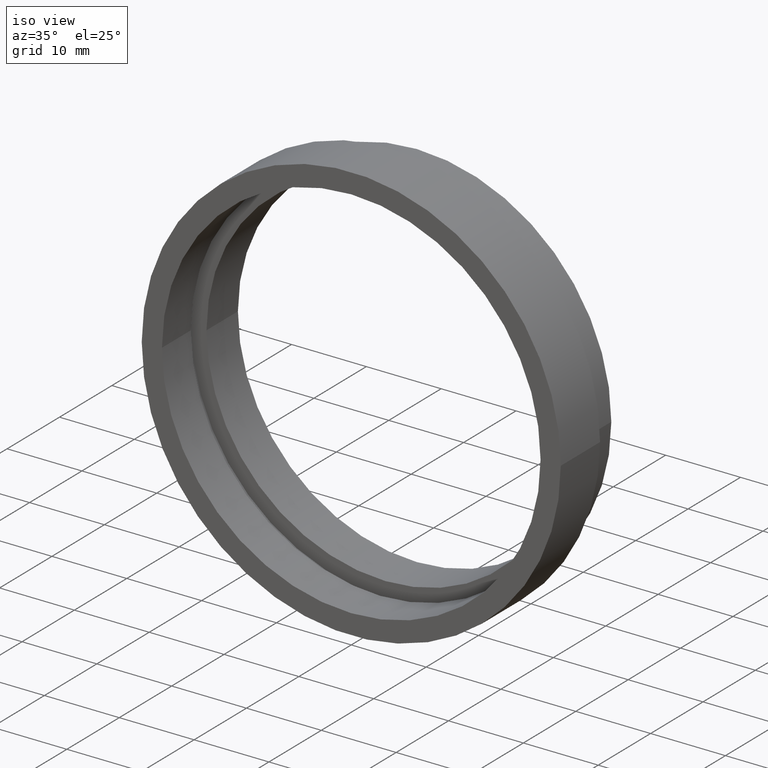
[diagram: clean part render]
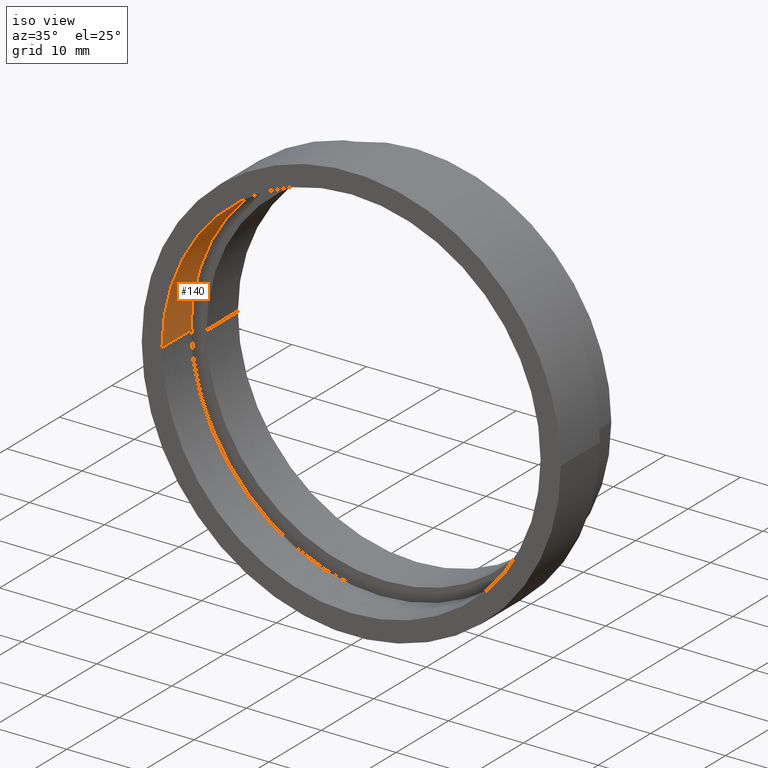
[diagram: same view with one face highlighted and labeled with its STEP entity id]
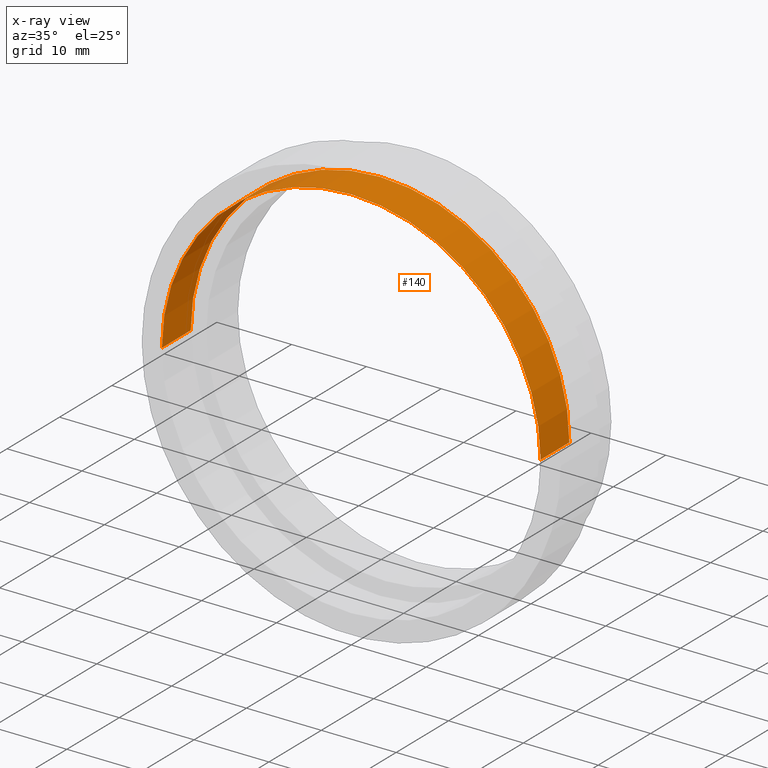
[diagram: x-ray of the same camera — body ghosted, the highlighted face saturated]
A machine part, iso view. The second image highlights one B-rep face of the part: STEP entity #140.
The next image is the same camera in x-ray: the body ghosted, the highlighted face saturated — about 0% of this face is hidden behind the body in this view.
In plain terms, the highlighted cylindrical surface (partial cylindrical patch) has radius 25.3 mm, axis along (-0, 1, -0).
Its self-contained STEP definition (entity closure, byte-faithful):
#2 = AXIS2_PLACEMENT_3D ( 'NONE', #334, #185, #242 ) ;
#44 = DIRECTION ( 'NONE',  ( -1.224646799147351000E-016, 1.000000000000000000, -0.0000000000000000000 ) ) ;
#51 = EDGE_LOOP ( 'NONE', ( #570, #492, #187, #537 ) ) ;
#58 = DIRECTION ( 'NONE',  ( -1.000000000000000000, -1.371322905910519200E-016, 0.0000000000000000000 ) ) ;
#102 = LINE ( 'NONE', #561, #142 ) ;
#108 = AXIS2_PLACEMENT_3D ( 'NONE', #169, #596, #558 ) ;
#125 = VECTOR ( 'NONE', #164, 1000.000000000000000 ) ;
#140 = ADVANCED_FACE ( 'NONE', ( #390 ), #486, .F. ) ;
#142 = VECTOR ( 'NONE', #44, 1000.000000000000000 ) ;
#149 = CARTESIAN_POINT ( 'NONE',  ( 25.30000000000000400, -3.710905501108162000E-016, 3.098356401842804300E-015 ) ) ;
#162 = CIRCLE ( 'NONE', #2, 25.30000000000000100 ) ;
#164 = DIRECTION ( 'NONE',  ( -1.224646799147351000E-016, 1.000000000000000000, -0.0000000000000000000 ) ) ;
#169 = CARTESIAN_POINT ( 'NONE',  ( 0.0000000000000000000, 16.88601823708207700, 0.0000000000000000000 ) ) ;
#170 = CARTESIAN_POINT ( 'NONE',  ( -25.29999999999999700, -6.567803353796412200E-015, 0.0000000000000000000 ) ) ;
#185 = DIRECTION ( 'NONE',  ( -1.224646799147351000E-016, 1.000000000000000000, -0.0000000000000000000 ) ) ;
#187 = ORIENTED_EDGE ( 'NONE', *, *, #502, .T. ) ;
#216 = CARTESIAN_POINT ( 'NONE',  ( 1.394385078907593400E-015, 5.499999999999994700, 0.0000000000000000000 ) ) ;
#227 = AXIS2_PLACEMENT_3D ( 'NONE', #216, #361, #58 ) ;
#242 = DIRECTION ( 'NONE',  ( -1.000000000000000000, -1.224646799147351000E-016, 0.0000000000000000000 ) ) ;
#261 = EDGE_CURVE ( 'NONE', #443, #597, #102, .T. ) ;
#278 = CARTESIAN_POINT ( 'NONE',  ( 25.30000000000000400, 5.499999999999998200, 3.098356401842804300E-015 ) ) ;
#302 = EDGE_CURVE ( 'NONE', #500, #443, #162, .T. ) ;
#334 = CARTESIAN_POINT ( 'NONE',  ( 2.067940818438636500E-015, -3.469446951953614200E-015, 0.0000000000000000000 ) ) ;
#339 = EDGE_CURVE ( 'NONE', #478, #597, #397, .T. ) ;
#361 = DIRECTION ( 'NONE',  ( -1.224646799147351000E-016, 1.000000000000000000, -0.0000000000000000000 ) ) ;
#374 = CARTESIAN_POINT ( 'NONE',  ( -25.30000000000000400, 5.499999999999991100, 0.0000000000000000000 ) ) ;
#390 = FACE_OUTER_BOUND ( 'NONE', #51, .T. ) ;
#397 = CIRCLE ( 'NONE', #227, 25.30000000000000400 ) ;
#443 = VERTEX_POINT ( 'NONE', #149 ) ;
#478 = VERTEX_POINT ( 'NONE', #374 ) ;
#486 = CYLINDRICAL_SURFACE ( 'NONE', #108, 25.30000000000000400 ) ;
#492 = ORIENTED_EDGE ( 'NONE', *, *, #302, .F. ) ;
#500 = VERTEX_POINT ( 'NONE', #170 ) ;
#502 = EDGE_CURVE ( 'NONE', #500, #478, #577, .T. ) ;
#537 = ORIENTED_EDGE ( 'NONE', *, *, #339, .T. ) ;
#558 = DIRECTION ( 'NONE',  ( -1.000000000000000000, -1.371322905910519200E-016, 0.0000000000000000000 ) ) ;
#561 = CARTESIAN_POINT ( 'NONE',  ( 25.30000000000000400, 16.88601823708208000, 3.098356401842804300E-015 ) ) ;
#570 = ORIENTED_EDGE ( 'NONE', *, *, #261, .F. ) ;
#577 = LINE ( 'NONE', #592, #125 ) ;
#592 = CARTESIAN_POINT ( 'NONE',  ( -25.30000000000000400, 16.88601823708207300, 0.0000000000000000000 ) ) ;
#596 = DIRECTION ( 'NONE',  ( -1.224646799147351000E-016, 1.000000000000000000, -0.0000000000000000000 ) ) ;
#597 = VERTEX_POINT ( 'NONE', #278 ) ;